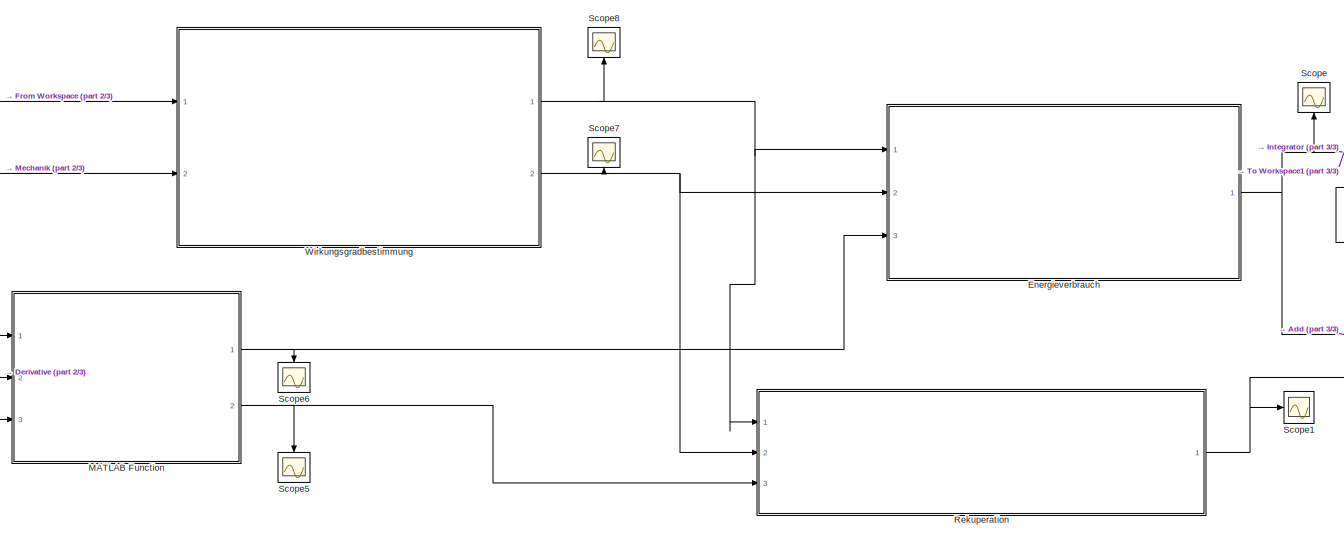
[diagram: root canvas - part 1/3, central region]
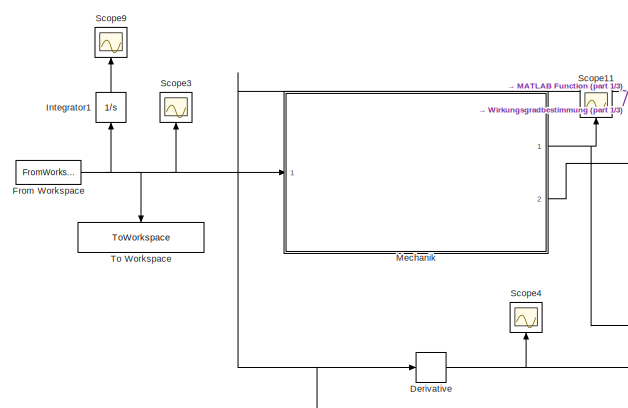
[diagram: root canvas - part 2/3, top left region]
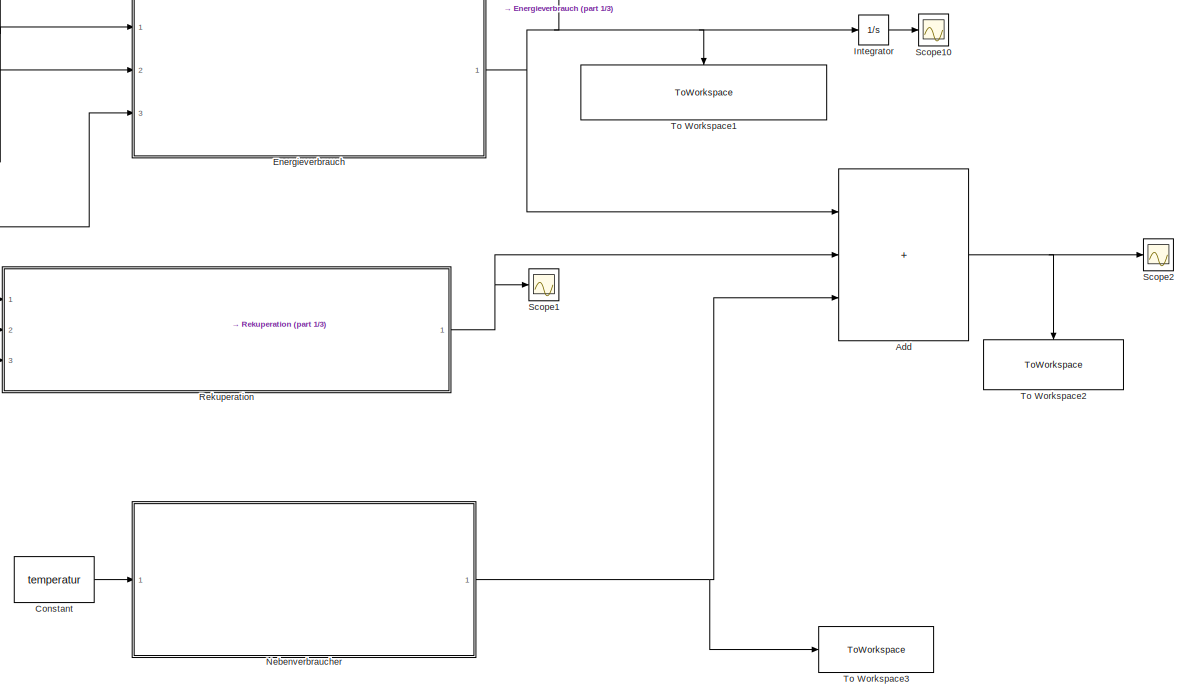
[diagram: root canvas - part 3/3, right side, full height]
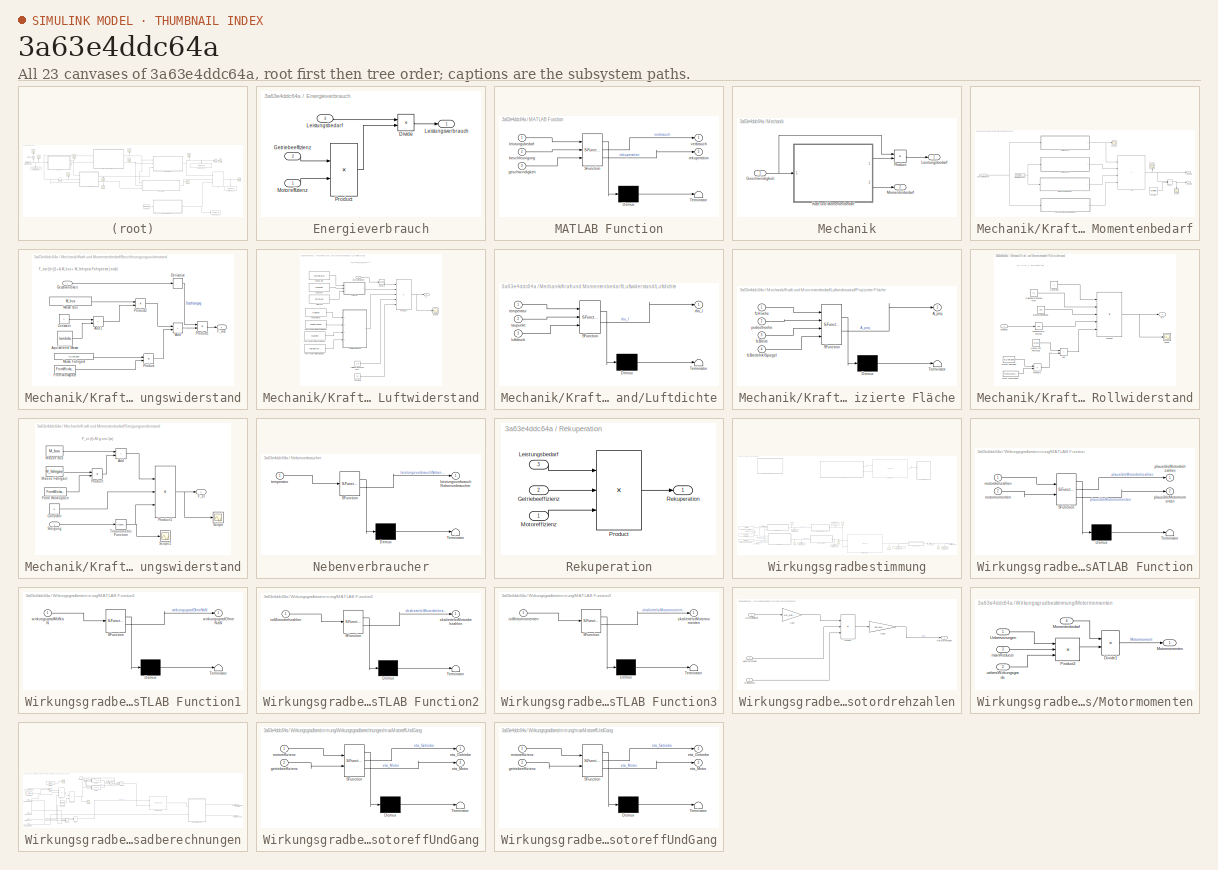
[diagram: thumbnail index - all 23 canvases of the model, root first then tree order]
MODEL slx_3a63e4ddc64a
KIND model
CONFIG AbsTol = auto
CONFIG EnableMultiTasking = off
CONFIG FixedStep = 1
CONFIG MaxStep = auto
CONFIG MinStep = auto
CONFIG RelTol = 1e-3
CONFIG SampleTimeConstraint = Unconstrained
CONFIG SolverName = FixedStepAuto
CONFIG StartTime = 0.0
CONFIG StopTime = 2750
BLOCK [Sum] Add
  IconShape = rectangular
  Inputs = +++
  Ports = [3, 1]
BLOCK [Constant] Constant
  Value = temperatur
BLOCK [Derivative] Derivative
BLOCK [SubSystem] Energieverbrauch
  Ports = [3, 1]
  RequestExecContextInheritance = off
BLOCK [Product] Energieverbrauch/Divide
  Inputs = */
  Ports = [2, 1]
BLOCK [Inport] Energieverbrauch/Getriebeeffizienz
  Port = 2
BLOCK [Inport] Energieverbrauch/Leistungsbedarf
  Port = 3
BLOCK [Outport] Energieverbrauch/Leistungsverbrauch
BLOCK [Inport] Energieverbrauch/Motoreffizienz
BLOCK [Product] Energieverbrauch/Product
  Ports = [2, 1]
BLOCK [FromWorkspace] From Workspace
  VariableName = Geschwindigkeit
BLOCK [Integrator] Integrator
  Ports = [1, 1]
BLOCK [Integrator] Integrator1
  NameLocation = right
  Ports = [1, 1]
BLOCK [SubSystem] MATLAB Function
  ErrorFcn = Stateflow.Translate.translate
  PermitHierarchicalResolution = ExplicitOnly
  Ports = [3, 2]
  RequestExecContextInheritance = off
  SFBlockType = MATLAB Function
  TreatAsAtomicUnit = on
BLOCK [Demux] MATLAB Function/ Demux 
  Outputs = 1
  Ports = [1, 1]
BLOCK [S-Function] MATLAB Function/ SFunction 
  EnableBusSupport = on
  FunctionName = sf_sfun
  PortCounts = [3 3]
  Ports = [3, 3]
  SFcnIsStateOwnerBlock = off
  SFunctionDeploymentMode = off
  Tag = Stateflow S-Function 6
BLOCK [Terminator] MATLAB Function/ Terminator 
BLOCK [Inport] MATLAB Function/beschleunigung
  Port = 2
BLOCK [Inport] MATLAB Function/geschwindigkeit
  Port = 3
BLOCK [Inport] MATLAB Function/leistungsbedarf
BLOCK [Outport] MATLAB Function/rekuperation
  Port = 2
BLOCK [Outport] MATLAB Function/verbrauch
BLOCK [SubSystem] Mechanik
  Ports = [1, 2]
  RequestExecContextInheritance = off
BLOCK [Inport] Mechanik/Geschwindigkeit
BLOCK [SubSystem] Mechanik/Kraft und Momentenbedarf
  Ports = [1, 2]
  RequestExecContextInheritance = off
BLOCK [Sum] Mechanik/Kraft und Momentenbedarf/Add
  IconShape = rectangular
  Inputs = ++++
  Ports = [4, 1]
BLOCK [SubSystem] Mechanik/Kraft und Momentenbedarf/Beschleunigungswiderstand
  Ports = [1, 1]
  RequestExecContextInheritance = off
BLOCK [Sum] Mechanik/Kraft und Momentenbedarf/Beschleunigungswiderstand/Add
  IconShape = rectangular
  Ports = [2, 1]
BLOCK [Sum] Mechanik/Kraft und Momentenbedarf/Beschleunigungswiderstand/Add1
  IconShape = rectangular
  Ports = [2, 1]
BLOCK [Constant] Mechanik/Kraft und Momentenbedarf/Beschleunigungswiderstand/Constant
BLOCK [Derivative] Mechanik/Kraft und Momentenbedarf/Beschleunigungswiderstand/Derivative
BLOCK [Outport] Mechanik/Kraft und Momentenbedarf/Beschleunigungswiderstand/F_acc
BLOCK [FromWorkspace] Mechanik/Kraft und Momentenbedarf/Beschleunigungswiderstand/From Workspace
  VariableName = Fahrgaeste
BLOCK [Inport] Mechanik/Kraft und Momentenbedarf/Beschleunigungswiderstand/Geschwindikeit
BLOCK [Constant] Mechanik/Kraft und Momentenbedarf/Beschleunigungswiderstand/Masse Bus
  Value = M_bus
BLOCK [Constant] Mechanik/Kraft und Momentenbedarf/Beschleunigungswiderstand/Masse Fahrgast
  Value = M_fahrgast
BLOCK [Product] Mechanik/Kraft und Momentenbedarf/Beschleunigungswiderstand/Product
  Ports = [2, 1]
BLOCK [Product] Mechanik/Kraft und Momentenbedarf/Beschleunigungswiderstand/Product1
  Ports = [2, 1]
BLOCK [Product] Mechanik/Kraft und Momentenbedarf/Beschleunigungswiderstand/Product2
  Ports = [2, 1]
BLOCK [Constant] Mechanik/Kraft und Momentenbedarf/Beschleunigungswiderstand/Äquivalente Masse
  Value = lambda
BLOCK [Constant] Mechanik/Kraft und Momentenbedarf/Constant
  Value = R_Reifen
BLOCK [Outport] Mechanik/Kraft und Momentenbedarf/F_Bedarf
BLOCK [FromWorkspace] Mechanik/Kraft und Momentenbedarf/From Workspace
  VariableName = timeseries(Steigung)
BLOCK [Inport] Mechanik/Kraft und Momentenbedarf/Geschwindigkeit
BLOCK [SubSystem] Mechanik/Kraft und Momentenbedarf/Luftwiderstand
  Ports = [1, 1]
  RequestExecContextInheritance = off
BLOCK [Constant] Mechanik/Kraft und Momentenbedarf/Luftwiderstand/Constant3
  Value = 0.5
BLOCK [Outport] Mechanik/Kraft und Momentenbedarf/Luftwiderstand/F_l
BLOCK [Constant] Mechanik/Kraft und Momentenbedarf/Luftwiderstand/Fahrzeugbreite inkl. Spiegel
  Value = fzBreiteInklSpiegel
BLOCK [Constant] Mechanik/Kraft und Momentenbedarf/Luftwiderstand/Fahrzeugbreite ohne Spiegel
  Value = fzBreite
BLOCK [Constant] Mechanik/Kraft und Momentenbedarf/Luftwiderstand/Fahrzeugbreite ohne Spiegel1
  Value = podesthoehe
BLOCK [Inport] Mechanik/Kraft und Momentenbedarf/Luftwiderstand/Geschwindigkeit
BLOCK [SubSystem] Mechanik/Kraft und Momentenbedarf/Luftwiderstand/Luftdichte
  ErrorFcn = Stateflow.Translate.translate
  PermitHierarchicalResolution = ExplicitOnly
  Ports = [3, 1]
  RequestExecContextInheritance = off
  SFBlockType = MATLAB Function
  TreatAsAtomicUnit = on
BLOCK [Demux] Mechanik/Kraft und Momentenbedarf/Luftwiderstand/Luftdichte/ Demux 
  Outputs = 1
  Ports = [1, 1]
BLOCK [S-Function] Mechanik/Kraft und Momentenbedarf/Luftwiderstand/Luftdichte/ SFunction 
  EnableBusSupport = on
  FunctionName = sf_sfun
  PortCounts = [3 2]
  Ports = [3, 2]
  SFcnIsStateOwnerBlock = off
  SFunctionDeploymentMode = off
  Tag = Stateflow S-Function 2
BLOCK [Terminator] Mechanik/Kraft und Momentenbedarf/Luftwiderstand/Luftdichte/ Terminator 
BLOCK [Inport] Mechanik/Kraft und Momentenbedarf/Luftwiderstand/Luftdichte/luftdruck
  Port = 3
BLOCK [Outport] Mechanik/Kraft und Momentenbedarf/Luftwiderstand/Luftdichte/rho_l
BLOCK [Inport] Mechanik/Kraft und Momentenbedarf/Luftwiderstand/Luftdichte/taupunkt
  Port = 2
BLOCK [Inport] Mechanik/Kraft und Momentenbedarf/Luftwiderstand/Luftdichte/temperatur
BLOCK [Constant] Mechanik/Kraft und Momentenbedarf/Luftwiderstand/Luftdruck
  Value = luftdruck
BLOCK [Constant] Mechanik/Kraft und Momentenbedarf/Luftwiderstand/Luftwiderstandsbeiwert
  Value = c_d
BLOCK [Constant] Mechanik/Kraft und Momentenbedarf/Luftwiderstand/Podesthöhe
  Value = fzHoehe
BLOCK [Product] Mechanik/Kraft und Momentenbedarf/Luftwiderstand/Product
  Inputs = 5
  Ports = [5, 1]
BLOCK [SubSystem] Mechanik/Kraft und Momentenbedarf/Luftwiderstand/Projizierte Fläche
  ErrorFcn = Stateflow.Translate.translate
  PermitHierarchicalResolution = ExplicitOnly
  Ports = [4, 1]
  RequestExecContextInheritance = off
  SFBlockType = MATLAB Function
  TreatAsAtomicUnit = on
BLOCK [Demux] Mechanik/Kraft und Momentenbedarf/Luftwiderstand/Projizierte Fläche/ Demux 
  Outputs = 1
  Ports = [1, 1]
BLOCK [S-Function] Mechanik/Kraft und Momentenbedarf/Luftwiderstand/Projizierte Fläche/ SFunction 
  EnableBusSupport = on
  FunctionName = sf_sfun
  PortCounts = [4 2]
  Ports = [4, 2]
  SFcnIsStateOwnerBlock = off
  SFunctionDeploymentMode = off
  Tag = Stateflow S-Function 1
BLOCK [Terminator] Mechanik/Kraft und Momentenbedarf/Luftwiderstand/Projizierte Fläche/ Terminator 
BLOCK [Outport] Mechanik/Kraft und Momentenbedarf/Luftwiderstand/Projizierte Fläche/A_proj
BLOCK [Inport] Mechanik/Kraft und Momentenbedarf/Luftwiderstand/Projizierte Fläche/fzBreite
  Port = 3
BLOCK [Inport] Mechanik/Kraft und Momentenbedarf/Luftwiderstand/Projizierte Fläche/fzBreiteInklSpiegel
  Port = 4
BLOCK [Inport] Mechanik/Kraft und Momentenbedarf/Luftwiderstand/Projizierte Fläche/fzHoehe
BLOCK [Inport] Mechanik/Kraft und Momentenbedarf/Luftwiderstand/Projizierte Fläche/podesthoehe
  Port = 2
BLOCK [Scope] Mechanik/Kraft und Momentenbedarf/Luftwiderstand/Scope
  Floating = off
  NumInputPorts = 1
  Ports = [1]
  ScopeSpecificationString = Simulink.scopes.TimeScopeBlockCfg('CurrentConfiguration', extmgr.ConfigurationSet(extmgr.Configuration('Core','General UI',true),extmgr.Configuration('Core','Source UI',true),extmgr.Configuration('Sources','WiredSimulink',true,'DataLoggingVariableName','ScopeData1'),extmgr.Configuration('Visuals','Time Domain',true,'SerializedDisplays',{struct('MinYLimReal','-74.87994','MaxYLimReal','673.91945','Y...<+1411ch>
BLOCK [Math] Mechanik/Kraft und Momentenbedarf/Luftwiderstand/Square
  Operator = square
  Ports = [1, 1]
BLOCK [Constant] Mechanik/Kraft und Momentenbedarf/Luftwiderstand/Taupunkt
  Value = taupunkt
BLOCK [Constant] Mechanik/Kraft und Momentenbedarf/Luftwiderstand/Temperatur
  Value = temperatur
BLOCK [Product] Mechanik/Kraft und Momentenbedarf/Product
  Ports = [2, 1]
BLOCK [SubSystem] Mechanik/Kraft und Momentenbedarf/Rollwiderstand
  Ports = [1, 1]
  RequestExecContextInheritance = off
BLOCK [Sum] Mechanik/Kraft und Momentenbedarf/Rollwiderstand/Add
  IconShape = rectangular
  Ports = [2, 1]
BLOCK [Constant] Mechanik/Kraft und Momentenbedarf/Rollwiderstand/Constant
BLOCK [Constant] Mechanik/Kraft und Momentenbedarf/Rollwiderstand/Erdbeschleunigung
  Value = 9.81
BLOCK [Outport] Mechanik/Kraft und Momentenbedarf/Rollwiderstand/F_r
BLOCK [FromWorkspace] Mechanik/Kraft und Momentenbedarf/Rollwiderstand/From Workspace
  VariableName = Fahrgaeste
BLOCK [Constant] Mechanik/Kraft und Momentenbedarf/Rollwiderstand/Masse Fahrgast
  Value = M_fahrgast
BLOCK [Constant] Mechanik/Kraft und Momentenbedarf/Rollwiderstand/Masse von Fahrzeug
  Value = M_bus
BLOCK [Product] Mechanik/Kraft und Momentenbedarf/Rollwiderstand/Product
  Inputs = 5
  Ports = [5, 1]
BLOCK [Product] Mechanik/Kraft und Momentenbedarf/Rollwiderstand/Product1
  Ports = [2, 1]
BLOCK [Constant] Mechanik/Kraft und Momentenbedarf/Rollwiderstand/Rollwiderstandsbeiwert
  Value = c_r
BLOCK [Scope] Mechanik/Kraft und Momentenbedarf/Rollwiderstand/Scope
  Floating = off
  NumInputPorts = 1
  Ports = [1]
  ScopeSpecificationString = Simulink.scopes.TimeScopeBlockCfg('CurrentConfiguration', extmgr.ConfigurationSet(extmgr.Configuration('Core','General UI',true),extmgr.Configuration('Core','Source UI',true),extmgr.Configuration('Sources','WiredSimulink',true,'DataLoggingVariableName','ScopeData2'),extmgr.Configuration('Visuals','Time Domain',true,'SerializedDisplays',{struct('MinYLimReal','1216.62285','MaxYLimReal','1302.52967',...<+1420ch>
BLOCK [Inport] Mechanik/Kraft und Momentenbedarf/Rollwiderstand/Steigung
BLOCK [Trigonometry] Mechanik/Kraft und Momentenbedarf/Rollwiderstand/Trigonometric Function
  Operator = cos
  Ports = [1, 1]
BLOCK [Scope] Mechanik/Kraft und Momentenbedarf/Scope
  Floating = off
  NameLocation = left
  NumInputPorts = 1
  Ports = [1]
  ScopeSpecificationString = Simulink.scopes.TimeScopeBlockCfg('CurrentConfiguration', extmgr.ConfigurationSet(extmgr.Configuration('Core','General UI',true),extmgr.Configuration('Core','Source UI',true),extmgr.Configuration('Sources','WiredSimulink',true,'DataLoggingVariableName','ScopeData1'),extmgr.Configuration('Visuals','Time Domain',true,'SerializedDisplays',{struct('MinYLimReal','-9200.63235','MaxYLimReal','12159.77074...<+1421ch>
BLOCK [Scope] Mechanik/Kraft und Momentenbedarf/Scope1
  Floating = off
  NameLocation = right
  NumInputPorts = 1
  Ports = [1]
  ScopeSpecificationString = Simulink.scopes.TimeScopeBlockCfg('CurrentConfiguration', extmgr.ConfigurationSet(extmgr.Configuration('Core','General UI',true),extmgr.Configuration('Core','Source UI',true),extmgr.Configuration('Sources','WiredSimulink',true,'DataLoggingVariableName','ScopeData5'),extmgr.Configuration('Visuals','Time Domain',true,'SerializedDisplays',{struct('MinYLimReal','-37262.11351','MaxYLimReal','38918.5372...<+1428ch>
BLOCK [Scope] Mechanik/Kraft und Momentenbedarf/Scope3
  Floating = off
  NumInputPorts = 1
  Ports = [1]
  ScopeSpecificationString = Simulink.scopes.TimeScopeBlockCfg('CurrentConfiguration', extmgr.ConfigurationSet(extmgr.Configuration('Core','General UI',true),extmgr.Configuration('Core','Source UI',true),extmgr.Configuration('Sources','WiredSimulink',true,'DataLoggingVariableName','ScopeData3'),extmgr.Configuration('Visuals','Time Domain',true,'SerializedDisplays',{struct('MinYLimReal','-84.10085','MaxYLimReal','756.90767','Y...<+1383ch>
BLOCK [SubSystem] Mechanik/Kraft und Momentenbedarf/Steigungswiderstand
  Ports = [1, 1]
  RequestExecContextInheritance = off
BLOCK [Sum] Mechanik/Kraft und Momentenbedarf/Steigungswiderstand/Add
  IconShape = rectangular
  Ports = [2, 1]
BLOCK [Constant] Mechanik/Kraft und Momentenbedarf/Steigungswiderstand/Constant
  Value = g
BLOCK [Outport] Mechanik/Kraft und Momentenbedarf/Steigungswiderstand/F_st
BLOCK [FromWorkspace] Mechanik/Kraft und Momentenbedarf/Steigungswiderstand/From Workspace
  VariableName = Fahrgaeste
BLOCK [Constant] Mechanik/Kraft und Momentenbedarf/Steigungswiderstand/Masse Bus
  Value = M_bus
BLOCK [Constant] Mechanik/Kraft und Momentenbedarf/Steigungswiderstand/Masse Fahrgast
  Value = M_fahrgast
BLOCK [Product] Mechanik/Kraft und Momentenbedarf/Steigungswiderstand/Product
  Ports = [2, 1]
BLOCK [Product] Mechanik/Kraft und Momentenbedarf/Steigungswiderstand/Product1
  Inputs = 3
  Ports = [3, 1]
BLOCK [Scope] Mechanik/Kraft und Momentenbedarf/Steigungswiderstand/Scope
  Floating = off
  NumInputPorts = 1
  Ports = [1]
  ScopeSpecificationString = Simulink.scopes.TimeScopeBlockCfg('CurrentConfiguration', extmgr.ConfigurationSet(extmgr.Configuration('Core','General UI',true),extmgr.Configuration('Core','Source UI',true),extmgr.Configuration('Sources','WiredSimulink',true,'DataLoggingVariableName','ScopeData3'),extmgr.Configuration('Visuals','Time Domain',true,'SerializedDisplays',{struct('MinYLimReal','-11979.01378','MaxYLimReal','10690.7534...<+1430ch>
BLOCK [Scope] Mechanik/Kraft und Momentenbedarf/Steigungswiderstand/Scope1
  Floating = off
  NumInputPorts = 1
  Ports = [1]
  ScopeSpecificationString = Simulink.scopes.TimeScopeBlockCfg('CurrentConfiguration', extmgr.ConfigurationSet(extmgr.Configuration('Core','General UI',true),extmgr.Configuration('Core','Source UI',true),extmgr.Configuration('Sources','WiredSimulink',true,'DataLoggingVariableName','ScopeData4'),extmgr.Configuration('Visuals','Time Domain',true,'SerializedDisplays',{struct('MinYLimReal','-0.09417','MaxYLimReal','0.08477','YLab...<+1416ch>
BLOCK [Inport] Mechanik/Kraft und Momentenbedarf/Steigungswiderstand/Steigung
BLOCK [Trigonometry] Mechanik/Kraft und Momentenbedarf/Steigungswiderstand/Trigonometric Function
  Ports = [1, 1]
BLOCK [Outport] Mechanik/Kraft und Momentenbedarf/T_bedarf
  Port = 2
BLOCK [Outport] Mechanik/Leistungsbedarf
BLOCK [Outport] Mechanik/Momentenbedarf
  Port = 2
BLOCK [Product] Mechanik/Product
  Ports = [2, 1]
BLOCK [SubSystem] Nebenverbraucher
  ErrorFcn = Stateflow.Translate.translate
  PermitHierarchicalResolution = ExplicitOnly
  Ports = [1, 1]
  RequestExecContextInheritance = off
  SFBlockType = MATLAB Function
  TreatAsAtomicUnit = on
BLOCK [Demux] Nebenverbraucher/ Demux 
  Outputs = 1
  Ports = [1, 1]
BLOCK [S-Function] Nebenverbraucher/ SFunction 
  EnableBusSupport = on
  FunctionName = sf_sfun
  PortCounts = [1 2]
  Ports = [1, 2]
  SFcnIsStateOwnerBlock = off
  SFunctionDeploymentMode = off
  Tag = Stateflow S-Function 10
BLOCK [Terminator] Nebenverbraucher/ Terminator 
BLOCK [Outport] Nebenverbraucher/leistungsverbrauchNebenverbraucher
BLOCK [Inport] Nebenverbraucher/temperatur
BLOCK [SubSystem] Rekuperation
  Ports = [3, 1]
  RequestExecContextInheritance = off
BLOCK [Inport] Rekuperation/Getriebeeffizienz
  Port = 2
BLOCK [Inport] Rekuperation/Leistungsbedarf
  Port = 3
BLOCK [Inport] Rekuperation/Motoreffizienz
BLOCK [Product] Rekuperation/Product
  Inputs = 3
  Ports = [3, 1]
BLOCK [Outport] Rekuperation/Rekuperation
BLOCK [Scope] Scope
  Floating = off
  NameLocation = right
  NumInputPorts = 1
  Ports = [1]
  ScopeSpecificationString = Simulink.scopes.TimeScopeBlockCfg('CurrentConfiguration', extmgr.ConfigurationSet(extmgr.Configuration('Core','General UI',true),extmgr.Configuration('Core','Source UI',true),extmgr.Configuration('Sources','WiredSimulink',true),extmgr.Configuration('Visuals','Time Domain',true,'SerializedDisplays',{struct('MinYLimReal','-31501.77351','MaxYLimReal','283515.96158','YLabelReal','','MinYLimMag','   0....<+1404ch>
BLOCK [Scope] Scope1
  Floating = off
  NumInputPorts = 1
  Ports = [1]
  ScopeSpecificationString = Simulink.scopes.TimeScopeBlockCfg('CurrentConfiguration', extmgr.ConfigurationSet(extmgr.Configuration('Core','General UI',true),extmgr.Configuration('Core','Source UI',true),extmgr.Configuration('Sources','WiredSimulink',true,'DataLoggingVariableName','ScopeData1'),extmgr.Configuration('Visuals','Time Domain',true,'SerializedDisplays',{struct('MinYLimReal','-163622.03246','MaxYLimReal','18180.225...<+1407ch>
BLOCK [Scope] Scope10
  Floating = off
  NumInputPorts = 1
  Ports = [1]
  ScopeSpecificationString = Simulink.scopes.TimeScopeBlockCfg('CurrentConfiguration', extmgr.ConfigurationSet(extmgr.Configuration('Core','General UI',true),extmgr.Configuration('Core','Source UI',true),extmgr.Configuration('Sources','WiredSimulink',true,'DataLoggingVariableName','ScopeData1'),extmgr.Configuration('Visuals','Time Domain',true,'SerializedDisplays',{struct('MinYLimReal','-7806803.23095','MaxYLimReal','70261229...<+1419ch>
BLOCK [Scope] Scope11
  Floating = off
  NameLocation = right
  NumInputPorts = 1
  Ports = [1]
  ScopeSpecificationString = Simulink.scopes.TimeScopeBlockCfg('CurrentConfiguration', extmgr.ConfigurationSet(extmgr.Configuration('Core','General UI',true),extmgr.Configuration('Core','Source UI',true),extmgr.Configuration('Sources','WiredSimulink',true,'DataLoggingVariableName','ScopeData1'),extmgr.Configuration('Visuals','Time Domain',true,'SerializedDisplays',{struct('MinYLimReal','-832276.27709','MaxYLimReal','920280.39...<+1407ch>
BLOCK [Scope] Scope2
  Floating = off
  NumInputPorts = 1
  Ports = [1]
  ScopeSpecificationString = Simulink.scopes.TimeScopeBlockCfg('CurrentConfiguration', extmgr.ConfigurationSet(extmgr.Configuration('Core','General UI',true),extmgr.Configuration('Core','Source UI',true),extmgr.Configuration('Sources','WiredSimulink',true,'DataLoggingVariableName','ScopeData2'),extmgr.Configuration('Visuals','Time Domain',true,'SerializedDisplays',{struct('MinYLimReal','-534403.69408','MaxYLimReal','1532673.5...<+1439ch>
BLOCK [Scope] Scope3
  Floating = off
  NameLocation = right
  NumInputPorts = 1
  Ports = [1]
  ScopeSpecificationString = Simulink.scopes.TimeScopeBlockCfg('CurrentConfiguration', extmgr.ConfigurationSet(extmgr.Configuration('Core','General UI',true),extmgr.Configuration('Core','Source UI',true),extmgr.Configuration('Sources','WiredSimulink',true,'DataLoggingVariableName','ScopeData3'),extmgr.Configuration('Visuals','Time Domain',true,'SerializedDisplays',{struct('MinYLimReal','-2.09225','MaxYLimReal','18.83025','YLa...<+1415ch>
BLOCK [Scope] Scope4
  Floating = off
  NameLocation = right
  NumInputPorts = 1
  Ports = [1]
  ScopeSpecificationString = Simulink.scopes.TimeScopeBlockCfg('CurrentConfiguration', extmgr.ConfigurationSet(extmgr.Configuration('Core','General UI',true),extmgr.Configuration('Core','Source UI',true),extmgr.Configuration('Sources','WiredSimulink',true,'DataLoggingVariableName','ScopeData3'),extmgr.Configuration('Visuals','Time Domain',true,'SerializedDisplays',{struct('MinYLimReal','-3.74056','MaxYLimReal','3.48167','YLab...<+1402ch>
BLOCK [Scope] Scope5
  Floating = off
  NameLocation = left
  NumInputPorts = 1
  Ports = [1]
  ScopeSpecificationString = Simulink.scopes.TimeScopeBlockCfg('CurrentConfiguration', extmgr.ConfigurationSet(extmgr.Configuration('Core','General UI',true),extmgr.Configuration('Core','Source UI',true),extmgr.Configuration('Sources','WiredSimulink',true,'DataLoggingVariableName','ScopeData4'),extmgr.Configuration('Visuals','Time Domain',true,'SerializedDisplays',{struct('MinYLimReal','-431858.3157','MaxYLimReal','47984.2573...<+1450ch>
BLOCK [Scope] Scope6
  Floating = off
  NameLocation = left
  NumInputPorts = 1
  Ports = [1]
  ScopeSpecificationString = Simulink.scopes.TimeScopeBlockCfg('CurrentConfiguration', extmgr.ConfigurationSet(extmgr.Configuration('Core','General UI',true),extmgr.Configuration('Core','Source UI',true),extmgr.Configuration('Sources','WiredSimulink',true,'DataLoggingVariableName','ScopeData5'),extmgr.Configuration('Visuals','Time Domain',true,'SerializedDisplays',{struct('MinYLimReal','-93128.09118','MaxYLimReal','838152.820...<+1418ch>
BLOCK [Scope] Scope7
  Floating = off
  NameLocation = right
  NumInputPorts = 1
  Ports = [1]
  ScopeSpecificationString = Simulink.scopes.TimeScopeBlockCfg('CurrentConfiguration', extmgr.ConfigurationSet(extmgr.Configuration('Core','General UI',true),extmgr.Configuration('Core','Source UI',true),extmgr.Configuration('Sources','WiredSimulink',true,'DataLoggingVariableName','ScopeData6'),extmgr.Configuration('Visuals','Time Domain',true,'SerializedDisplays',{struct('MinYLimReal','0.84','MaxYLimReal','1.04','YLabelReal'...<+1440ch>
BLOCK [Scope] Scope8
  Floating = off
  NameLocation = right
  NumInputPorts = 1
  Ports = [1]
  ScopeSpecificationString = Simulink.scopes.TimeScopeBlockCfg('CurrentConfiguration', extmgr.ConfigurationSet(extmgr.Configuration('Core','General UI',true),extmgr.Configuration('Core','Source UI',true),extmgr.Configuration('Sources','WiredSimulink',true,'DataLoggingVariableName','ScopeData7'),extmgr.Configuration('Visuals','Time Domain',true,'SerializedDisplays',{struct('MinYLimReal','0.726','MaxYLimReal','0.966','YLabelRea...<+1381ch>
BLOCK [Scope] Scope9
  Floating = off
  NameLocation = right
  NumInputPorts = 1
  Ports = [1]
  ScopeSpecificationString = Simulink.scopes.TimeScopeBlockCfg('CurrentConfiguration', extmgr.ConfigurationSet(extmgr.Configuration('Core','General UI',true),extmgr.Configuration('Core','Source UI',true),extmgr.Configuration('Sources','WiredSimulink',true,'DataLoggingVariableName','ScopeData1'),extmgr.Configuration('Visuals','Time Domain',true,'SerializedDisplays',{struct('MinYLimReal','-1093.68283','MaxYLimReal','9843.1455',...<+1388ch>
BLOCK [ToWorkspace] To Workspace
  FixptAsFi = on
  MaxDataPoints = inf
  NameLocation = left
  Ports = [1]
  SampleTime = -1
  SaveFormat = Timeseries
  VariableName = simulinkGeschwindigkeit
BLOCK [ToWorkspace] To Workspace1
  FixptAsFi = on
  MaxDataPoints = inf
  NameLocation = left
  Ports = [1]
  SampleTime = -1
  SaveFormat = Timeseries
  VariableName = LeistungsverbrauchOhneRekuperation
BLOCK [ToWorkspace] To Workspace2
  FixptAsFi = on
  MaxDataPoints = inf
  NameLocation = left
  Ports = [1]
  SampleTime = -1
  SaveFormat = Timeseries
  VariableName = LeistungsverbrauchGesamt
BLOCK [ToWorkspace] To Workspace3
  FixptAsFi = on
  MaxDataPoints = inf
  Ports = [1]
  SampleTime = -1
  SaveFormat = Timeseries
  VariableName = Nebenverbraucher
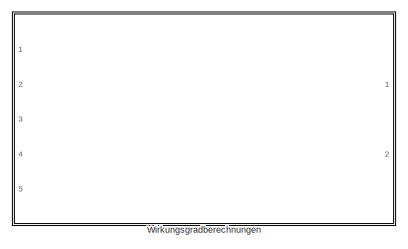
[diagram: Wirkungsgradbestimmung - part 1/6, top left region]
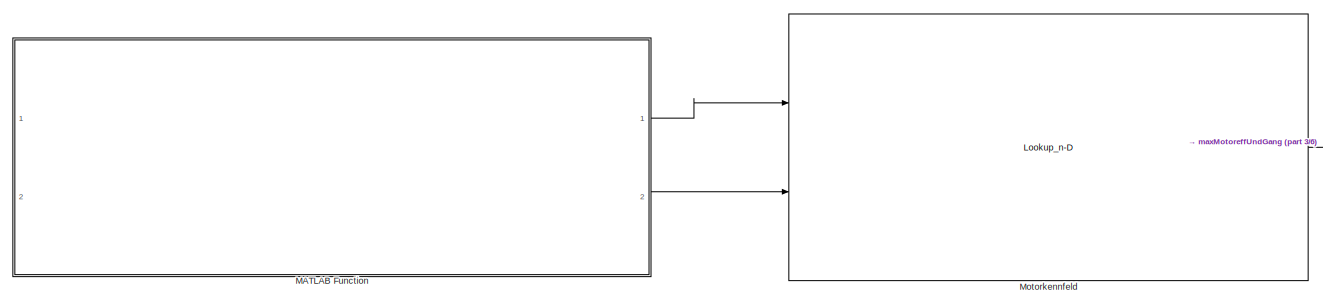
[diagram: Wirkungsgradbestimmung - part 2/6, top center region]
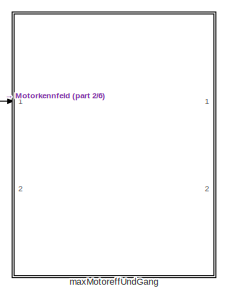
[diagram: Wirkungsgradbestimmung - part 3/6, top right region]
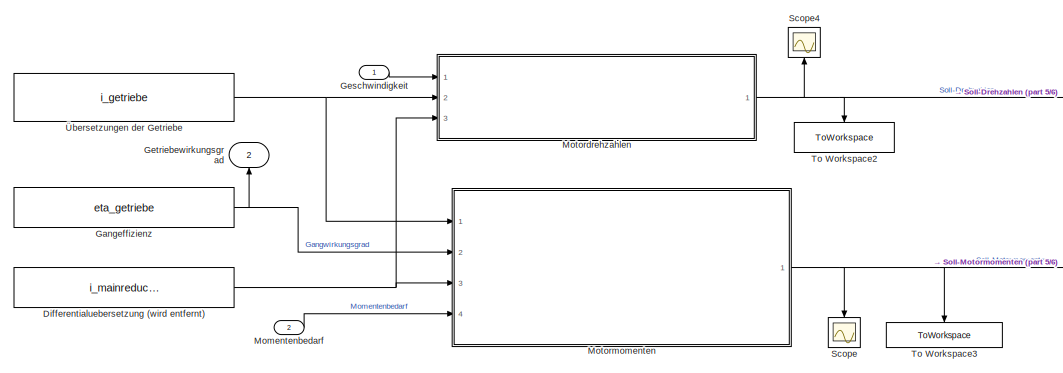
[diagram: Wirkungsgradbestimmung - part 4/6, bottom left region]
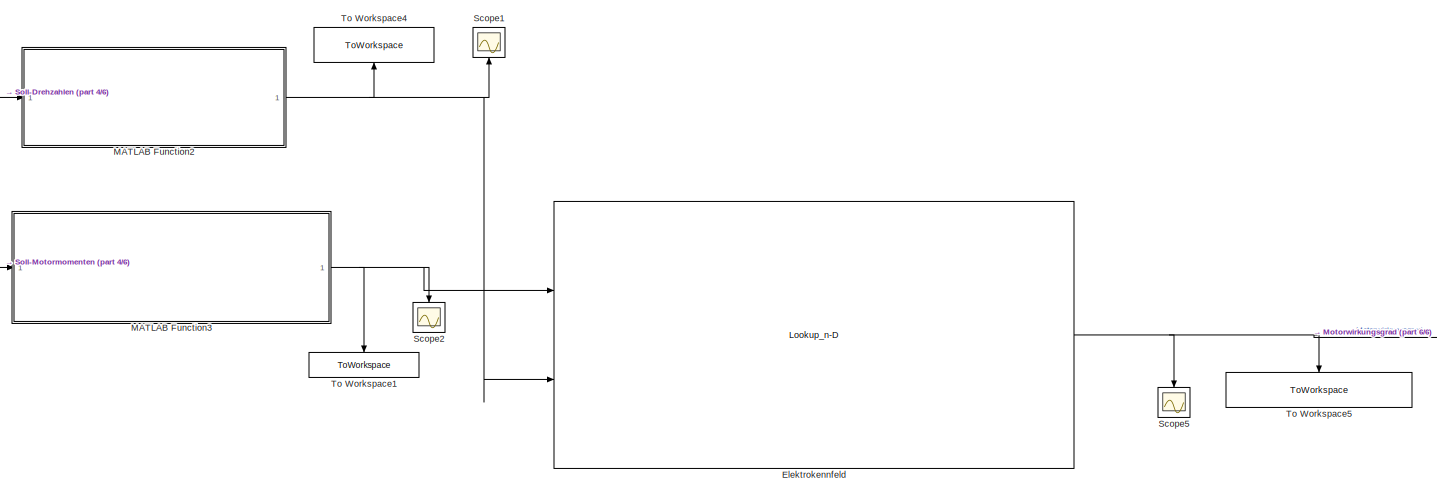
[diagram: Wirkungsgradbestimmung - part 5/6, bottom center region]
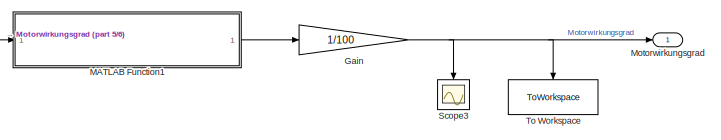
[diagram: Wirkungsgradbestimmung - part 6/6, bottom right region]
BLOCK [SubSystem] Wirkungsgradbestimmung
  Ports = [2, 2]
  RequestExecContextInheritance = off
BLOCK [Constant] Wirkungsgradbestimmung/Differentialuebersetzung (wird entfernt)
  Value = i_mainreducer
BLOCK [Lookup_n-D] Wirkungsgradbestimmung/Elektrokennfeld
  BreakpointsForDimension1 = [1:161]
  BreakpointsForDimension2 = [1:251]
  InputPortMap = u0,u1
  InternalRulePriority = Speed
  InterpMethod = Nearest
  Ports = [2, 1]
  RndMeth = Simplest
  Table = kennfeld
  UseLastTableValue = on
BLOCK [Gain] Wirkungsgradbestimmung/Gain
  Gain = 1/100
BLOCK [Constant] Wirkungsgradbestimmung/Gangeffizienz
  Value = eta_getriebe
BLOCK [Inport] Wirkungsgradbestimmung/Geschwindigkeit
BLOCK [Outport] Wirkungsgradbestimmung/Getriebewirkungsgrad
  NameLocation = left
  Port = 2
BLOCK [SubSystem] Wirkungsgradbestimmung/MATLAB Function
  Commented = on
  ErrorFcn = Stateflow.Translate.translate
  PermitHierarchicalResolution = ExplicitOnly
  Ports = [2, 2]
  RequestExecContextInheritance = off
  SFBlockType = MATLAB Function
  TreatAsAtomicUnit = on
BLOCK [Demux] Wirkungsgradbestimmung/MATLAB Function/ Demux 
  Outputs = 1
  Ports = [1, 1]
BLOCK [S-Function] Wirkungsgradbestimmung/MATLAB Function/ SFunction 
  EnableBusSupport = on
  FunctionName = sf_sfun
  PortCounts = [2 3]
  Ports = [2, 3]
  SFcnIsStateOwnerBlock = off
  SFunctionDeploymentMode = off
  Tag = Stateflow S-Function 3
BLOCK [Terminator] Wirkungsgradbestimmung/MATLAB Function/ Terminator 
BLOCK [Inport] Wirkungsgradbestimmung/MATLAB Function/motordrehzahlen
BLOCK [Inport] Wirkungsgradbestimmung/MATLAB Function/motormomenten
  Port = 2
BLOCK [Outport] Wirkungsgradbestimmung/MATLAB Function/plausibleMotordrehzahlen
BLOCK [Outport] Wirkungsgradbestimmung/MATLAB Function/plausibleMotormomenten
  Port = 2
BLOCK [SubSystem] Wirkungsgradbestimmung/MATLAB Function1
  ErrorFcn = Stateflow.Translate.translate
  PermitHierarchicalResolution = ExplicitOnly
  Ports = [1, 1]
  RequestExecContextInheritance = off
  SFBlockType = MATLAB Function
  TreatAsAtomicUnit = on
BLOCK [Demux] Wirkungsgradbestimmung/MATLAB Function1/ Demux 
  Outputs = 1
  Ports = [1, 1]
BLOCK [S-Function] Wirkungsgradbestimmung/MATLAB Function1/ SFunction 
  EnableBusSupport = on
  FunctionName = sf_sfun
  PortCounts = [1 2]
  Ports = [1, 2]
  SFcnIsStateOwnerBlock = off
  SFunctionDeploymentMode = off
  Tag = Stateflow S-Function 7
BLOCK [Terminator] Wirkungsgradbestimmung/MATLAB Function1/ Terminator 
BLOCK [Inport] Wirkungsgradbestimmung/MATLAB Function1/wirkungsgradMitNaN
BLOCK [Outport] Wirkungsgradbestimmung/MATLAB Function1/wirkungsgradOhneNaN
BLOCK [SubSystem] Wirkungsgradbestimmung/MATLAB Function2
  ErrorFcn = Stateflow.Translate.translate
  PermitHierarchicalResolution = ExplicitOnly
  Ports = [1, 1]
  RequestExecContextInheritance = off
  SFBlockType = MATLAB Function
  TreatAsAtomicUnit = on
BLOCK [Demux] Wirkungsgradbestimmung/MATLAB Function2/ Demux 
  Outputs = 1
  Ports = [1, 1]
BLOCK [S-Function] Wirkungsgradbestimmung/MATLAB Function2/ SFunction 
  EnableBusSupport = on
  FunctionName = sf_sfun
  PortCounts = [1 2]
  Ports = [1, 2]
  SFcnIsStateOwnerBlock = off
  SFunctionDeploymentMode = off
  Tag = Stateflow S-Function 9
BLOCK [Terminator] Wirkungsgradbestimmung/MATLAB Function2/ Terminator 
BLOCK [Inport] Wirkungsgradbestimmung/MATLAB Function2/istMotordrehzahlen
BLOCK [Outport] Wirkungsgradbestimmung/MATLAB Function2/skalierteIstMotordrehzahlen
BLOCK [SubSystem] Wirkungsgradbestimmung/MATLAB Function3
  ErrorFcn = Stateflow.Translate.translate
  PermitHierarchicalResolution = ExplicitOnly
  Ports = [1, 1]
  RequestExecContextInheritance = off
  SFBlockType = MATLAB Function
  TreatAsAtomicUnit = on
BLOCK [Demux] Wirkungsgradbestimmung/MATLAB Function3/ Demux 
  Outputs = 1
  Ports = [1, 1]
BLOCK [S-Function] Wirkungsgradbestimmung/MATLAB Function3/ SFunction 
  EnableBusSupport = on
  FunctionName = sf_sfun
  PortCounts = [1 2]
  Ports = [1, 2]
  SFcnIsStateOwnerBlock = off
  SFunctionDeploymentMode = off
  Tag = Stateflow S-Function 8
BLOCK [Terminator] Wirkungsgradbestimmung/MATLAB Function3/ Terminator 
BLOCK [Inport] Wirkungsgradbestimmung/MATLAB Function3/istMotormomenten
BLOCK [Outport] Wirkungsgradbestimmung/MATLAB Function3/skalierteIstMotormomenten
BLOCK [Inport] Wirkungsgradbestimmung/Momentenbedarf
  Port = 2
BLOCK [SubSystem] Wirkungsgradbestimmung/Motordrehzahlen
  Ports = [3, 1]
  RequestExecContextInheritance = off
BLOCK [Gain] Wirkungsgradbestimmung/Motordrehzahlen/Gain
  Gain = 1/R_Reifen
BLOCK [Gain] Wirkungsgradbestimmung/Motordrehzahlen/Gain1
  Gain = 60/(2*pi)
BLOCK [Inport] Wirkungsgradbestimmung/Motordrehzahlen/Geschwindigkeit
BLOCK [Outport] Wirkungsgradbestimmung/Motordrehzahlen/Motordrehzahlen
BLOCK [Product] Wirkungsgradbestimmung/Motordrehzahlen/Product
  Inputs = 3
  Ports = [3, 1]
BLOCK [Inport] Wirkungsgradbestimmung/Motordrehzahlen/Uebersetzungen
  Port = 2
BLOCK [Inport] Wirkungsgradbestimmung/Motordrehzahlen/mainReducer
  Port = 3
BLOCK [Lookup_n-D] Wirkungsgradbestimmung/Motorkennfeld
  BreakpointsForDimension1 = [1:86]
  BreakpointsForDimension2 = [1:251]
  Commented = on
  InputPortMap = u0,u1
  InternalRulePriority = Speed
  Ports = [2, 1]
  RndMeth = Simplest
  Table = kennfeld
BLOCK [SubSystem] Wirkungsgradbestimmung/Motormomenten
  Ports = [4, 1]
  RequestExecContextInheritance = off
BLOCK [Product] Wirkungsgradbestimmung/Motormomenten/Divide1
  Inputs = */
  Ports = [2, 1]
BLOCK [Inport] Wirkungsgradbestimmung/Motormomenten/Momentenbedarf
  Port = 4
BLOCK [Outport] Wirkungsgradbestimmung/Motormomenten/Motormomenten
BLOCK [Product] Wirkungsgradbestimmung/Motormomenten/Product2
  Inputs = 3
  Ports = [3, 1]
BLOCK [Inport] Wirkungsgradbestimmung/Motormomenten/Uebersezungen
BLOCK [Inport] Wirkungsgradbestimmung/Motormomenten/mainReducer
  Port = 3
BLOCK [Inport] Wirkungsgradbestimmung/Motormomenten/uebersWirkungsgrade
  Port = 2
BLOCK [Outport] Wirkungsgradbestimmung/Motorwirkungsgrad
BLOCK [Scope] Wirkungsgradbestimmung/Scope
  Floating = off
  NameLocation = left
  NumInputPorts = 1
  Ports = [1]
  ScopeSpecificationString = Simulink.scopes.TimeScopeBlockCfg('CurrentConfiguration', extmgr.ConfigurationSet(extmgr.Configuration('Core','General UI',true),extmgr.Configuration('Core','Source UI',true),extmgr.Configuration('Sources','WiredSimulink',true,'DataLoggingVariableName','ScopeData8'),extmgr.Configuration('Visuals','Time Domain',true,'SerializedDisplays',{struct('MinYLimReal','-839.64416','MaxYLimReal','877.04682','...<+1422ch>
BLOCK [Scope] Wirkungsgradbestimmung/Scope1
  Floating = off
  NameLocation = right
  NumInputPorts = 1
  Ports = [1]
  ScopeSpecificationString = Simulink.scopes.TimeScopeBlockCfg('CurrentConfiguration', extmgr.ConfigurationSet(extmgr.Configuration('Core','General UI',true),extmgr.Configuration('Core','Source UI',true),extmgr.Configuration('Sources','WiredSimulink',true,'DataLoggingVariableName','ScopeData1'),extmgr.Configuration('Visuals','Time Domain',true,'SerializedDisplays',{struct('MinYLimReal','-20.43636','MaxYLimReal','193.9272','YL...<+1414ch>
BLOCK [Scope] Wirkungsgradbestimmung/Scope2
  Floating = off
  NameLocation = left
  NumInputPorts = 1
  Ports = [1]
  ScopeSpecificationString = Simulink.scopes.TimeScopeBlockCfg('CurrentConfiguration', extmgr.ConfigurationSet(extmgr.Configuration('Core','General UI',true),extmgr.Configuration('Core','Source UI',true),extmgr.Configuration('Sources','WiredSimulink',true,'DataLoggingVariableName','ScopeData2'),extmgr.Configuration('Visuals','Time Domain',true,'SerializedDisplays',{struct('MinYLimReal','11.7469','MaxYLimReal','153.33163','YLa...<+1417ch>
BLOCK [Scope] Wirkungsgradbestimmung/Scope3
  Floating = off
  NameLocation = left
  NumInputPorts = 1
  Ports = [1]
  ScopeSpecificationString = Simulink.scopes.TimeScopeBlockCfg('CurrentConfiguration', extmgr.ConfigurationSet(extmgr.Configuration('Core','General UI',true),extmgr.Configuration('Core','Source UI',true),extmgr.Configuration('Sources','WiredSimulink',true,'DataLoggingVariableName','ScopeData2'),extmgr.Configuration('Visuals','Time Domain',true,'SerializedDisplays',{struct('MinYLimReal','0.55725','MaxYLimReal','0.98475','YLabe...<+1408ch>
BLOCK [Scope] Wirkungsgradbestimmung/Scope4
  Floating = off
  NameLocation = right
  NumInputPorts = 1
  Ports = [1]
  ScopeSpecificationString = Simulink.scopes.TimeScopeBlockCfg('CurrentConfiguration', extmgr.ConfigurationSet(extmgr.Configuration('Core','General UI',true),extmgr.Configuration('Core','Source UI',true),extmgr.Configuration('Sources','WiredSimulink',true,'DataLoggingVariableName','ScopeData9'),extmgr.Configuration('Visuals','Time Domain',true,'SerializedDisplays',{struct('MinYLimReal','-943.19964','MaxYLimReal','8488.79677',...<+1392ch>
BLOCK [Scope] Wirkungsgradbestimmung/Scope5
  Floating = off
  NameLocation = left
  NumInputPorts = 1
  Ports = [1]
  ScopeSpecificationString = Simulink.scopes.TimeScopeBlockCfg('CurrentConfiguration', extmgr.ConfigurationSet(extmgr.Configuration('Core','General UI',true),extmgr.Configuration('Core','Source UI',true),extmgr.Configuration('Sources','WiredSimulink',true,'DataLoggingVariableName','ScopeData1'),extmgr.Configuration('Visuals','Time Domain',true,'SerializedDisplays',{struct('MinYLimReal','72.6','MaxYLimReal','96.6','YLabelReal'...<+1385ch>
BLOCK [ToWorkspace] Wirkungsgradbestimmung/To Workspace
  FixptAsFi = on
  MaxDataPoints = inf
  NameLocation = left
  Ports = [1]
  SampleTime = -1
  SaveFormat = Timeseries
  VariableName = Wirkungsgrade
BLOCK [ToWorkspace] Wirkungsgradbestimmung/To Workspace1
  FixptAsFi = on
  MaxDataPoints = inf
  NameLocation = left
  Ports = [1]
  SampleTime = -1
  SaveFormat = Timeseries
  VariableName = skalierteMotormomente
BLOCK [ToWorkspace] Wirkungsgradbestimmung/To Workspace2
  FixptAsFi = on
  MaxDataPoints = inf
  NameLocation = left
  Ports = [1]
  SampleTime = -1
  SaveFormat = Timeseries
  VariableName = SollMotordrehzahlen
BLOCK [ToWorkspace] Wirkungsgradbestimmung/To Workspace3
  FixptAsFi = on
  MaxDataPoints = inf
  NameLocation = left
  Ports = [1]
  SampleTime = -1
  SaveFormat = Timeseries
  VariableName = SollMotormomenten
BLOCK [ToWorkspace] Wirkungsgradbestimmung/To Workspace4
  FixptAsFi = on
  MaxDataPoints = inf
  NameLocation = right
  Ports = [1]
  SampleTime = -1
  SaveFormat = Timeseries
  VariableName = skalierteMotordrehzahlen
BLOCK [ToWorkspace] Wirkungsgradbestimmung/To Workspace5
  FixptAsFi = on
  MaxDataPoints = inf
  NameLocation = left
  Ports = [1]
  SampleTime = -1
  SaveFormat = Timeseries
  VariableName = WirkungsgradeNichtBeseitigt
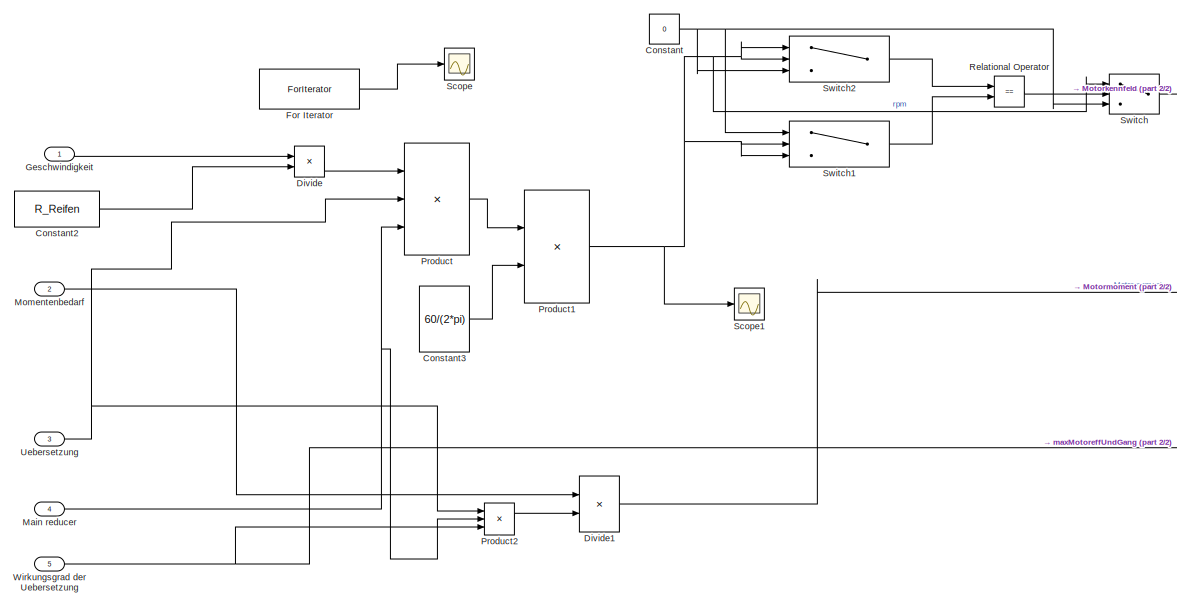
[diagram: Wirkungsgradbestimmung/Wirkungsgradberechnungen - part 1/2, left side, full height]
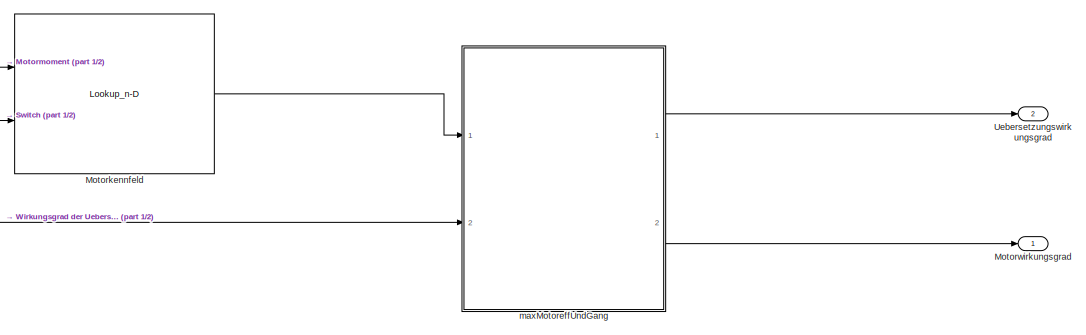
[diagram: Wirkungsgradbestimmung/Wirkungsgradberechnungen - part 2/2, middle right region]
BLOCK [SubSystem] Wirkungsgradbestimmung/Wirkungsgradberechnungen
  Commented = on
  Ports = [5, 2]
  RequestExecContextInheritance = off
  TreatAsAtomicUnit = on
BLOCK [Constant] Wirkungsgradbestimmung/Wirkungsgradberechnungen/Constant
  Value = 0
BLOCK [Constant] Wirkungsgradbestimmung/Wirkungsgradberechnungen/Constant2
  Value = R_Reifen
BLOCK [Constant] Wirkungsgradbestimmung/Wirkungsgradberechnungen/Constant3
  Value = 60/(2*pi)
BLOCK [Product] Wirkungsgradbestimmung/Wirkungsgradberechnungen/Divide
  Inputs = */
  Ports = [2, 1]
BLOCK [Product] Wirkungsgradbestimmung/Wirkungsgradberechnungen/Divide1
  Inputs = */
  Ports = [2, 1]
BLOCK [ForIterator] Wirkungsgradbestimmung/Wirkungsgradberechnungen/For Iterator
  IterationLimit = 4
  Ports = [0, 1]
BLOCK [Inport] Wirkungsgradbestimmung/Wirkungsgradberechnungen/Geschwindigkeit
BLOCK [Inport] Wirkungsgradbestimmung/Wirkungsgradberechnungen/Main reducer
  Port = 4
BLOCK [Inport] Wirkungsgradbestimmung/Wirkungsgradberechnungen/Momentenbedarf
  Port = 2
BLOCK [Lookup_n-D] Wirkungsgradbestimmung/Wirkungsgradberechnungen/Motorkennfeld
  BreakpointsForDimension1 = [1:86]
  BreakpointsForDimension2 = [1:251]
  InputPortMap = u0,u1
  InternalRulePriority = Speed
  Ports = [2, 1]
  RndMeth = Simplest
  Table = kennfeld
BLOCK [Outport] Wirkungsgradbestimmung/Wirkungsgradberechnungen/Motorwirkungsgrad
BLOCK [Product] Wirkungsgradbestimmung/Wirkungsgradberechnungen/Product
  Inputs = 3
  Ports = [3, 1]
BLOCK [Product] Wirkungsgradbestimmung/Wirkungsgradberechnungen/Product1
  Ports = [2, 1]
BLOCK [Product] Wirkungsgradbestimmung/Wirkungsgradberechnungen/Product2
  Inputs = 3
  Ports = [3, 1]
BLOCK [RelationalOperator] Wirkungsgradbestimmung/Wirkungsgradberechnungen/Relational Operator
  InputSameDT = off
  Operator = ==
  OutDataTypeStr = boolean
  Ports = [2, 1]
  RndMeth = Simplest
BLOCK [Scope] Wirkungsgradbestimmung/Wirkungsgradberechnungen/Scope
  Floating = off
  NumInputPorts = 1
  Ports = [1]
  ScopeSpecificationString = Simulink.scopes.TimeScopeBlockCfg('CurrentConfiguration', extmgr.ConfigurationSet(extmgr.Configuration('Core','General UI',true),extmgr.Configuration('Core','Source UI',true),extmgr.Configuration('Sources','WiredSimulink',true,'DataLoggingVariableName','ScopeData1'),extmgr.Configuration('Visuals','Time Domain',true),extmgr.Configuration('Tools','Plot Navigation',true),extmgr.Configuration('Tools',...<+40ch>
BLOCK [Scope] Wirkungsgradbestimmung/Wirkungsgradberechnungen/Scope1
  Floating = off
  NumInputPorts = 1
  Ports = [1]
  ScopeSpecificationString = Simulink.scopes.TimeScopeBlockCfg('CurrentConfiguration', extmgr.ConfigurationSet(extmgr.Configuration('Core','General UI',true),extmgr.Configuration('Core','Source UI',true),extmgr.Configuration('Sources','WiredSimulink',true,'DataLoggingVariableName','ScopeData1'),extmgr.Configuration('Visuals','Time Domain',true),extmgr.Configuration('Tools','Plot Navigation',true),extmgr.Configuration('Tools',...<+40ch>
BLOCK [Switch] Wirkungsgradbestimmung/Wirkungsgradberechnungen/Switch
  Criteria = u2 ~= 0
  InputSameDT = off
  SaturateOnIntegerOverflow = off
  Threshold = 1
BLOCK [Switch] Wirkungsgradbestimmung/Wirkungsgradberechnungen/Switch1
  Criteria = u2 > Threshold
  InputSameDT = off
  SaturateOnIntegerOverflow = off
  Threshold = 2500
BLOCK [Switch] Wirkungsgradbestimmung/Wirkungsgradberechnungen/Switch2
  InputSameDT = off
  SaturateOnIntegerOverflow = off
BLOCK [Inport] Wirkungsgradbestimmung/Wirkungsgradberechnungen/Uebersetzung
  Port = 3
BLOCK [Outport] Wirkungsgradbestimmung/Wirkungsgradberechnungen/Uebersetzungswirkungsgrad
  Port = 2
BLOCK [Inport] Wirkungsgradbestimmung/Wirkungsgradberechnungen/Wirkungsgrad der Uebersetzung
  Port = 5
BLOCK [SubSystem] Wirkungsgradbestimmung/Wirkungsgradberechnungen/maxMotoreffUndGang
  ErrorFcn = Stateflow.Translate.translate
  PermitHierarchicalResolution = ExplicitOnly
  Ports = [2, 2]
  RequestExecContextInheritance = off
  SFBlockType = MATLAB Function
  TreatAsAtomicUnit = on
BLOCK [Demux] Wirkungsgradbestimmung/Wirkungsgradberechnungen/maxMotoreffUndGang/ Demux 
  Outputs = 1
  Ports = [1, 1]
BLOCK [S-Function] Wirkungsgradbestimmung/Wirkungsgradberechnungen/maxMotoreffUndGang/ SFunction 
  EnableBusSupport = on
  FunctionName = sf_sfun
  PortCounts = [2 3]
  Ports = [2, 3]
  SFcnIsStateOwnerBlock = off
  SFunctionDeploymentMode = off
  Tag = Stateflow S-Function 4
BLOCK [Terminator] Wirkungsgradbestimmung/Wirkungsgradberechnungen/maxMotoreffUndGang/ Terminator 
BLOCK [Outport] Wirkungsgradbestimmung/Wirkungsgradberechnungen/maxMotoreffUndGang/eta_Getriebe
BLOCK [Outport] Wirkungsgradbestimmung/Wirkungsgradberechnungen/maxMotoreffUndGang/eta_Motor
  Port = 2
BLOCK [Inport] Wirkungsgradbestimmung/Wirkungsgradberechnungen/maxMotoreffUndGang/getriebeeffizienz
  Port = 2
BLOCK [Inport] Wirkungsgradbestimmung/Wirkungsgradberechnungen/maxMotoreffUndGang/motoreffizienz
BLOCK [SubSystem] Wirkungsgradbestimmung/maxMotoreffUndGang
  Commented = on
  ErrorFcn = Stateflow.Translate.translate
  PermitHierarchicalResolution = ExplicitOnly
  Ports = [2, 2]
  RequestExecContextInheritance = off
  SFBlockType = MATLAB Function
  TreatAsAtomicUnit = on
BLOCK [Demux] Wirkungsgradbestimmung/maxMotoreffUndGang/ Demux 
  Outputs = 1
  Ports = [1, 1]
BLOCK [S-Function] Wirkungsgradbestimmung/maxMotoreffUndGang/ SFunction 
  EnableBusSupport = on
  FunctionName = sf_sfun
  PortCounts = [2 3]
  Ports = [2, 3]
  SFcnIsStateOwnerBlock = off
  SFunctionDeploymentMode = off
  Tag = Stateflow S-Function 5
BLOCK [Terminator] Wirkungsgradbestimmung/maxMotoreffUndGang/ Terminator 
BLOCK [Outport] Wirkungsgradbestimmung/maxMotoreffUndGang/eta_Getriebe
BLOCK [Outport] Wirkungsgradbestimmung/maxMotoreffUndGang/eta_Motor
  Port = 2
BLOCK [Inport] Wirkungsgradbestimmung/maxMotoreffUndGang/getriebeeffizienz
  Port = 2
BLOCK [Inport] Wirkungsgradbestimmung/maxMotoreffUndGang/motoreffizienz
BLOCK [Constant] Wirkungsgradbestimmung/Übersetzungen der Getriebe
  Value = i_getriebe
ANNOTATION Mechanik/Kraft und Momentenbedarf/Beschleunigungswiderstand: F_acc (t)=[(1+λ)∙M_bus + M_fahrgast∙Fahrgaeste]∙acc(t)
ANNOTATION Mechanik/Kraft und Momentenbedarf/Luftwiderstand: F_l (t)=1/2 ρ_l∙A_f∙ C_d∙V(t)^2
ANNOTATION Mechanik/Kraft und Momentenbedarf/Rollwiderstand: F_r (t)=C_r ∙M∙g∙cos⁡(α)
ANNOTATION Mechanik/Kraft und Momentenbedarf/Steigungswiderstand: F_st (t)=M∙g∙sin⁡(α)
NET Add:1 -> Scope2:1, To Workspace2:1
LINE Constant:1 -> Nebenverbraucher:1
NET Derivative:1 -> MATLAB Function:2, Scope4:1
LINE Energieverbrauch/Divide:1 -> Energieverbrauch/Leistungsverbrauch:1
LINE Energieverbrauch/Getriebeeffizienz:1 -> Energieverbrauch/Product:1
LINE Energieverbrauch/Leistungsbedarf:1 -> Energieverbrauch/Divide:1
LINE Energieverbrauch/Motoreffizienz:1 -> Energieverbrauch/Product:2
LINE Energieverbrauch/Product:1 -> Energieverbrauch/Divide:2
NET Energieverbrauch:1 -> Add:1, Integrator:1, Scope:1, To Workspace1:1
NET From Workspace:1 -> Derivative:1, Integrator1:1, MATLAB Function:3, Mechanik:1, Scope3:1, To Workspace:1, Wirkungsgradbestimmung:1
LINE Integrator1:1 -> Scope9:1
LINE Integrator:1 -> Scope10:1
NET MATLAB Function:1 -> Energieverbrauch:3, Scope6:1
NET MATLAB Function:2 -> Rekuperation:3, Scope5:1
NET Mechanik/Geschwindigkeit:1 -> Mechanik/Kraft und Momentenbedarf:1, Mechanik/Product:1
NET Mechanik/Kraft und Momentenbedarf/Add:1 -> Mechanik/Kraft und Momentenbedarf/F_Bedarf:1, Mechanik/Kraft und Momentenbedarf/Product:1, Mechanik/Kraft und Momentenbedarf/Scope1:1
LINE Mechanik/Kraft und Momentenbedarf/Beschleunigungswiderstand/Add1:1 -> Mechanik/Kraft und Momentenbedarf/Beschleunigungswiderstand/Product2:2
LINE Mechanik/Kraft und Momentenbedarf/Beschleunigungswiderstand/Add:1 -> Mechanik/Kraft und Momentenbedarf/Beschleunigungswiderstand/Product1:2
LINE Mechanik/Kraft und Momentenbedarf/Beschleunigungswiderstand/Constant:1 -> Mechanik/Kraft und Momentenbedarf/Beschleunigungswiderstand/Add1:1
LINE Mechanik/Kraft und Momentenbedarf/Beschleunigungswiderstand/Derivative:1 -> Mechanik/Kraft und Momentenbedarf/Beschleunigungswiderstand/Product1:1
LINE Mechanik/Kraft und Momentenbedarf/Beschleunigungswiderstand/From Workspace:1 -> Mechanik/Kraft und Momentenbedarf/Beschleunigungswiderstand/Product:2
LINE Mechanik/Kraft und Momentenbedarf/Beschleunigungswiderstand/Geschwindikeit:1 -> Mechanik/Kraft und Momentenbedarf/Beschleunigungswiderstand/Derivative:1
LINE Mechanik/Kraft und Momentenbedarf/Beschleunigungswiderstand/Masse Bus:1 -> Mechanik/Kraft und Momentenbedarf/Beschleunigungswiderstand/Product2:1
LINE Mechanik/Kraft und Momentenbedarf/Beschleunigungswiderstand/Masse Fahrgast:1 -> Mechanik/Kraft und Momentenbedarf/Beschleunigungswiderstand/Product:1
LINE Mechanik/Kraft und Momentenbedarf/Beschleunigungswiderstand/Product1:1 -> Mechanik/Kraft und Momentenbedarf/Beschleunigungswiderstand/F_acc:1
LINE Mechanik/Kraft und Momentenbedarf/Beschleunigungswiderstand/Product2:1 -> Mechanik/Kraft und Momentenbedarf/Beschleunigungswiderstand/Add:1
LINE Mechanik/Kraft und Momentenbedarf/Beschleunigungswiderstand/Product:1 -> Mechanik/Kraft und Momentenbedarf/Beschleunigungswiderstand/Add:2
LINE Mechanik/Kraft und Momentenbedarf/Beschleunigungswiderstand/Äquivalente Masse:1 -> Mechanik/Kraft und Momentenbedarf/Beschleunigungswiderstand/Add1:2
LINE Mechanik/Kraft und Momentenbedarf/Beschleunigungswiderstand:1 -> Mechanik/Kraft und Momentenbedarf/Add:4
LINE Mechanik/Kraft und Momentenbedarf/Constant:1 -> Mechanik/Kraft und Momentenbedarf/Product:2
NET Mechanik/Kraft und Momentenbedarf/From Workspace:1 -> Mechanik/Kraft und Momentenbedarf/Rollwiderstand:1, Mechanik/Kraft und Momentenbedarf/Steigungswiderstand:1
NET Mechanik/Kraft und Momentenbedarf/Geschwindigkeit:1 -> Mechanik/Kraft und Momentenbedarf/Beschleunigungswiderstand:1, Mechanik/Kraft und Momentenbedarf/Luftwiderstand:1
LINE Mechanik/Kraft und Momentenbedarf/Luftwiderstand/Constant3:1 -> Mechanik/Kraft und Momentenbedarf/Luftwiderstand/Product:5
LINE Mechanik/Kraft und Momentenbedarf/Luftwiderstand/Fahrzeugbreite inkl. Spiegel:1 -> Mechanik/Kraft und Momentenbedarf/Luftwiderstand/Projizierte Fläche:4
LINE Mechanik/Kraft und Momentenbedarf/Luftwiderstand/Fahrzeugbreite ohne Spiegel1:1 -> Mechanik/Kraft und Momentenbedarf/Luftwiderstand/Projizierte Fläche:2
LINE Mechanik/Kraft und Momentenbedarf/Luftwiderstand/Fahrzeugbreite ohne Spiegel:1 -> Mechanik/Kraft und Momentenbedarf/Luftwiderstand/Projizierte Fläche:3
LINE Mechanik/Kraft und Momentenbedarf/Luftwiderstand/Geschwindigkeit:1 -> Mechanik/Kraft und Momentenbedarf/Luftwiderstand/Square:1
LINE Mechanik/Kraft und Momentenbedarf/Luftwiderstand/Luftdichte:1 -> Mechanik/Kraft und Momentenbedarf/Luftwiderstand/Product:2
LINE Mechanik/Kraft und Momentenbedarf/Luftwiderstand/Luftdruck:1 -> Mechanik/Kraft und Momentenbedarf/Luftwiderstand/Luftdichte:3
LINE Mechanik/Kraft und Momentenbedarf/Luftwiderstand/Luftwiderstandsbeiwert:1 -> Mechanik/Kraft und Momentenbedarf/Luftwiderstand/Product:4
LINE Mechanik/Kraft und Momentenbedarf/Luftwiderstand/Podesthöhe:1 -> Mechanik/Kraft und Momentenbedarf/Luftwiderstand/Projizierte Fläche:1
NET Mechanik/Kraft und Momentenbedarf/Luftwiderstand/Product:1 -> Mechanik/Kraft und Momentenbedarf/Luftwiderstand/F_l:1, Mechanik/Kraft und Momentenbedarf/Luftwiderstand/Scope:1
LINE Mechanik/Kraft und Momentenbedarf/Luftwiderstand/Projizierte Fläche:1 -> Mechanik/Kraft und Momentenbedarf/Luftwiderstand/Product:3
LINE Mechanik/Kraft und Momentenbedarf/Luftwiderstand/Square:1 -> Mechanik/Kraft und Momentenbedarf/Luftwiderstand/Product:1
LINE Mechanik/Kraft und Momentenbedarf/Luftwiderstand/Taupunkt:1 -> Mechanik/Kraft und Momentenbedarf/Luftwiderstand/Luftdichte:2
LINE Mechanik/Kraft und Momentenbedarf/Luftwiderstand/Temperatur:1 -> Mechanik/Kraft und Momentenbedarf/Luftwiderstand/Luftdichte:1
NET Mechanik/Kraft und Momentenbedarf/Luftwiderstand:1 -> Mechanik/Kraft und Momentenbedarf/Add:1, Mechanik/Kraft und Momentenbedarf/Scope3:1
NET Mechanik/Kraft und Momentenbedarf/Product:1 -> Mechanik/Kraft und Momentenbedarf/Scope:1, Mechanik/Kraft und Momentenbedarf/T_bedarf:1
LINE Mechanik/Kraft und Momentenbedarf/Rollwiderstand/Add:1 -> Mechanik/Kraft und Momentenbedarf/Rollwiderstand/Product:5
LINE Mechanik/Kraft und Momentenbedarf/Rollwiderstand/Constant:1 -> Mechanik/Kraft und Momentenbedarf/Rollwiderstand/Product:1
LINE Mechanik/Kraft und Momentenbedarf/Rollwiderstand/Erdbeschleunigung:1 -> Mechanik/Kraft und Momentenbedarf/Rollwiderstand/Product:3
LINE Mechanik/Kraft und Momentenbedarf/Rollwiderstand/From Workspace:1 -> Mechanik/Kraft und Momentenbedarf/Rollwiderstand/Product1:2
LINE Mechanik/Kraft und Momentenbedarf/Rollwiderstand/Masse Fahrgast:1 -> Mechanik/Kraft und Momentenbedarf/Rollwiderstand/Product1:1
LINE Mechanik/Kraft und Momentenbedarf/Rollwiderstand/Masse von Fahrzeug:1 -> Mechanik/Kraft und Momentenbedarf/Rollwiderstand/Add:1
LINE Mechanik/Kraft und Momentenbedarf/Rollwiderstand/Product1:1 -> Mechanik/Kraft und Momentenbedarf/Rollwiderstand/Add:2
NET Mechanik/Kraft und Momentenbedarf/Rollwiderstand/Product:1 -> Mechanik/Kraft und Momentenbedarf/Rollwiderstand/F_r:1, Mechanik/Kraft und Momentenbedarf/Rollwiderstand/Scope:1
LINE Mechanik/Kraft und Momentenbedarf/Rollwiderstand/Rollwiderstandsbeiwert:1 -> Mechanik/Kraft und Momentenbedarf/Rollwiderstand/Product:2
LINE Mechanik/Kraft und Momentenbedarf/Rollwiderstand/Steigung:1 -> Mechanik/Kraft und Momentenbedarf/Rollwiderstand/Trigonometric Function:1
LINE Mechanik/Kraft und Momentenbedarf/Rollwiderstand/Trigonometric Function:1 -> Mechanik/Kraft und Momentenbedarf/Rollwiderstand/Product:4
LINE Mechanik/Kraft und Momentenbedarf/Rollwiderstand:1 -> Mechanik/Kraft und Momentenbedarf/Add:2
LINE Mechanik/Kraft und Momentenbedarf/Steigungswiderstand/Add:1 -> Mechanik/Kraft und Momentenbedarf/Steigungswiderstand/Product1:1
LINE Mechanik/Kraft und Momentenbedarf/Steigungswiderstand/Constant:1 -> Mechanik/Kraft und Momentenbedarf/Steigungswiderstand/Product1:2
LINE Mechanik/Kraft und Momentenbedarf/Steigungswiderstand/From Workspace:1 -> Mechanik/Kraft und Momentenbedarf/Steigungswiderstand/Product:2
LINE Mechanik/Kraft und Momentenbedarf/Steigungswiderstand/Masse Bus:1 -> Mechanik/Kraft und Momentenbedarf/Steigungswiderstand/Add:1
LINE Mechanik/Kraft und Momentenbedarf/Steigungswiderstand/Masse Fahrgast:1 -> Mechanik/Kraft und Momentenbedarf/Steigungswiderstand/Product:1
NET Mechanik/Kraft und Momentenbedarf/Steigungswiderstand/Product1:1 -> Mechanik/Kraft und Momentenbedarf/Steigungswiderstand/F_st:1, Mechanik/Kraft und Momentenbedarf/Steigungswiderstand/Scope:1
LINE Mechanik/Kraft und Momentenbedarf/Steigungswiderstand/Product:1 -> Mechanik/Kraft und Momentenbedarf/Steigungswiderstand/Add:2
LINE Mechanik/Kraft und Momentenbedarf/Steigungswiderstand/Steigung:1 -> Mechanik/Kraft und Momentenbedarf/Steigungswiderstand/Trigonometric Function:1
NET Mechanik/Kraft und Momentenbedarf/Steigungswiderstand/Trigonometric Function:1 -> Mechanik/Kraft und Momentenbedarf/Steigungswiderstand/Product1:3, Mechanik/Kraft und Momentenbedarf/Steigungswiderstand/Scope1:1
LINE Mechanik/Kraft und Momentenbedarf/Steigungswiderstand:1 -> Mechanik/Kraft und Momentenbedarf/Add:3
LINE Mechanik/Kraft und Momentenbedarf:1 -> Mechanik/Product:2
LINE Mechanik/Kraft und Momentenbedarf:2 -> Mechanik/Momentenbedarf:1
LINE Mechanik/Product:1 -> Mechanik/Leistungsbedarf:1
NET Mechanik:1 -> MATLAB Function:1, Scope11:1
LINE Mechanik:2 -> Wirkungsgradbestimmung:2
NET Nebenverbraucher:1 -> Add:3, To Workspace3:1
LINE Rekuperation/Getriebeeffizienz:1 -> Rekuperation/Product:2
LINE Rekuperation/Leistungsbedarf:1 -> Rekuperation/Product:1
LINE Rekuperation/Motoreffizienz:1 -> Rekuperation/Product:3
LINE Rekuperation/Product:1 -> Rekuperation/Rekuperation:1
NET Rekuperation:1 -> Add:2, Scope1:1
NET Wirkungsgradbestimmung/Differentialuebersetzung (wird entfernt):1 -> Wirkungsgradbestimmung/Motordrehzahlen:3, Wirkungsgradbestimmung/Motormomenten:3
NET Wirkungsgradbestimmung/Elektrokennfeld:1 -> Wirkungsgradbestimmung/MATLAB Function1:1, Wirkungsgradbestimmung/Scope5:1, Wirkungsgradbestimmung/To Workspace5:1
NET Wirkungsgradbestimmung/Gain:1 -> Wirkungsgradbestimmung/Motorwirkungsgrad:1, Wirkungsgradbestimmung/Scope3:1, Wirkungsgradbestimmung/To Workspace:1
NET Wirkungsgradbestimmung/Gangeffizienz:1 -> Wirkungsgradbestimmung/Getriebewirkungsgrad:1, Wirkungsgradbestimmung/Motormomenten:2
LINE Wirkungsgradbestimmung/Geschwindigkeit:1 -> Wirkungsgradbestimmung/Motordrehzahlen:1
LINE Wirkungsgradbestimmung/MATLAB Function1:1 -> Wirkungsgradbestimmung/Gain:1
NET Wirkungsgradbestimmung/MATLAB Function2:1 -> Wirkungsgradbestimmung/Elektrokennfeld:2, Wirkungsgradbestimmung/Scope1:1, Wirkungsgradbestimmung/To Workspace4:1
NET Wirkungsgradbestimmung/MATLAB Function3:1 -> Wirkungsgradbestimmung/Elektrokennfeld:1, Wirkungsgradbestimmung/Scope2:1, Wirkungsgradbestimmung/To Workspace1:1
LINE Wirkungsgradbestimmung/MATLAB Function:1 -> Wirkungsgradbestimmung/Motorkennfeld:1
LINE Wirkungsgradbestimmung/MATLAB Function:2 -> Wirkungsgradbestimmung/Motorkennfeld:2
LINE Wirkungsgradbestimmung/Momentenbedarf:1 -> Wirkungsgradbestimmung/Motormomenten:4
LINE Wirkungsgradbestimmung/Motordrehzahlen/Gain1:1 -> Wirkungsgradbestimmung/Motordrehzahlen/Motordrehzahlen:1
LINE Wirkungsgradbestimmung/Motordrehzahlen/Gain:1 -> Wirkungsgradbestimmung/Motordrehzahlen/Product:1
LINE Wirkungsgradbestimmung/Motordrehzahlen/Geschwindigkeit:1 -> Wirkungsgradbestimmung/Motordrehzahlen/Gain:1
LINE Wirkungsgradbestimmung/Motordrehzahlen/Product:1 -> Wirkungsgradbestimmung/Motordrehzahlen/Gain1:1
LINE Wirkungsgradbestimmung/Motordrehzahlen/Uebersetzungen:1 -> Wirkungsgradbestimmung/Motordrehzahlen/Product:2
LINE Wirkungsgradbestimmung/Motordrehzahlen/mainReducer:1 -> Wirkungsgradbestimmung/Motordrehzahlen/Product:3
NET Wirkungsgradbestimmung/Motordrehzahlen:1 -> Wirkungsgradbestimmung/MATLAB Function2:1, Wirkungsgradbestimmung/Scope4:1, Wirkungsgradbestimmung/To Workspace2:1
LINE Wirkungsgradbestimmung/Motorkennfeld:1 -> Wirkungsgradbestimmung/maxMotoreffUndGang:1
LINE Wirkungsgradbestimmung/Motormomenten/Divide1:1 -> Wirkungsgradbestimmung/Motormomenten/Motormomenten:1
LINE Wirkungsgradbestimmung/Motormomenten/Momentenbedarf:1 -> Wirkungsgradbestimmung/Motormomenten/Divide1:1
LINE Wirkungsgradbestimmung/Motormomenten/Product2:1 -> Wirkungsgradbestimmung/Motormomenten/Divide1:2
LINE Wirkungsgradbestimmung/Motormomenten/Uebersezungen:1 -> Wirkungsgradbestimmung/Motormomenten/Product2:1
LINE Wirkungsgradbestimmung/Motormomenten/mainReducer:1 -> Wirkungsgradbestimmung/Motormomenten/Product2:2
LINE Wirkungsgradbestimmung/Motormomenten/uebersWirkungsgrade:1 -> Wirkungsgradbestimmung/Motormomenten/Product2:3
NET Wirkungsgradbestimmung/Motormomenten:1 -> Wirkungsgradbestimmung/MATLAB Function3:1, Wirkungsgradbestimmung/Scope:1, Wirkungsgradbestimmung/To Workspace3:1
LINE Wirkungsgradbestimmung/Wirkungsgradberechnungen/Constant2:1 -> Wirkungsgradbestimmung/Wirkungsgradberechnungen/Divide:2
LINE Wirkungsgradbestimmung/Wirkungsgradberechnungen/Constant3:1 -> Wirkungsgradbestimmung/Wirkungsgradberechnungen/Product1:2
NET Wirkungsgradbestimmung/Wirkungsgradberechnungen/Constant:1 -> Wirkungsgradbestimmung/Wirkungsgradberechnungen/Switch1:1, Wirkungsgradbestimmung/Wirkungsgradberechnungen/Switch2:3, Wirkungsgradbestimmung/Wirkungsgradberechnungen/Switch:3
LINE Wirkungsgradbestimmung/Wirkungsgradberechnungen/Divide1:1 -> Wirkungsgradbestimmung/Wirkungsgradberechnungen/Motorkennfeld:1
LINE Wirkungsgradbestimmung/Wirkungsgradberechnungen/Divide:1 -> Wirkungsgradbestimmung/Wirkungsgradberechnungen/Product:1
LINE Wirkungsgradbestimmung/Wirkungsgradberechnungen/For Iterator:1 -> Wirkungsgradbestimmung/Wirkungsgradberechnungen/Scope:1
LINE Wirkungsgradbestimmung/Wirkungsgradberechnungen/Geschwindigkeit:1 -> Wirkungsgradbestimmung/Wirkungsgradberechnungen/Divide:1
NET Wirkungsgradbestimmung/Wirkungsgradberechnungen/Main reducer:1 -> Wirkungsgradbestimmung/Wirkungsgradberechnungen/Product2:2, Wirkungsgradbestimmung/Wirkungsgradberechnungen/Product:3
LINE Wirkungsgradbestimmung/Wirkungsgradberechnungen/Momentenbedarf:1 -> Wirkungsgradbestimmung/Wirkungsgradberechnungen/Divide1:1
LINE Wirkungsgradbestimmung/Wirkungsgradberechnungen/Motorkennfeld:1 -> Wirkungsgradbestimmung/Wirkungsgradberechnungen/maxMotoreffUndGang:1
NET Wirkungsgradbestimmung/Wirkungsgradberechnungen/Product1:1 -> Wirkungsgradbestimmung/Wirkungsgradberechnungen/Scope1:1, Wirkungsgradbestimmung/Wirkungsgradberechnungen/Switch1:2, Wirkungsgradbestimmung/Wirkungsgradberechnungen/Switch1:3, Wirkungsgradbestimmung/Wirkungsgradberechnungen/Switch2:1, Wirkungsgradbestimmung/Wirkungsgradberechnungen/Switch2:2, Wirkungsgradbestimmung/Wirkungsgradberechnungen/Switch:1
LINE Wirkungsgradbestimmung/Wirkungsgradberechnungen/Product2:1 -> Wirkungsgradbestimmung/Wirkungsgradberechnungen/Divide1:2
LINE Wirkungsgradbestimmung/Wirkungsgradberechnungen/Product:1 -> Wirkungsgradbestimmung/Wirkungsgradberechnungen/Product1:1
LINE Wirkungsgradbestimmung/Wirkungsgradberechnungen/Relational Operator:1 -> Wirkungsgradbestimmung/Wirkungsgradberechnungen/Switch:2
LINE Wirkungsgradbestimmung/Wirkungsgradberechnungen/Switch1:1 -> Wirkungsgradbestimmung/Wirkungsgradberechnungen/Relational Operator:2
LINE Wirkungsgradbestimmung/Wirkungsgradberechnungen/Switch2:1 -> Wirkungsgradbestimmung/Wirkungsgradberechnungen/Relational Operator:1
LINE Wirkungsgradbestimmung/Wirkungsgradberechnungen/Switch:1 -> Wirkungsgradbestimmung/Wirkungsgradberechnungen/Motorkennfeld:2
NET Wirkungsgradbestimmung/Wirkungsgradberechnungen/Uebersetzung:1 -> Wirkungsgradbestimmung/Wirkungsgradberechnungen/Product2:1, Wirkungsgradbestimmung/Wirkungsgradberechnungen/Product:2
NET Wirkungsgradbestimmung/Wirkungsgradberechnungen/Wirkungsgrad der Uebersetzung:1 -> Wirkungsgradbestimmung/Wirkungsgradberechnungen/Product2:3, Wirkungsgradbestimmung/Wirkungsgradberechnungen/maxMotoreffUndGang:2
LINE Wirkungsgradbestimmung/Wirkungsgradberechnungen/maxMotoreffUndGang:1 -> Wirkungsgradbestimmung/Wirkungsgradberechnungen/Uebersetzungswirkungsgrad:1
LINE Wirkungsgradbestimmung/Wirkungsgradberechnungen/maxMotoreffUndGang:2 -> Wirkungsgradbestimmung/Wirkungsgradberechnungen/Motorwirkungsgrad:1
NET Wirkungsgradbestimmung/Übersetzungen der Getriebe:1 -> Wirkungsgradbestimmung/Motordrehzahlen:2, Wirkungsgradbestimmung/Motormomenten:1
NET Wirkungsgradbestimmung:1 -> Energieverbrauch:1, Rekuperation:1, Scope8:1
NET Wirkungsgradbestimmung:2 -> Energieverbrauch:2, Rekuperation:2, Scope7:1
note: NET lines group one-source signal fan-out (src -> all destinations, sorted); 1:1 wires keep LINE
CHART Mechanik/Kraft und Momentenbedarf/Luftwiderstand/Projizierte Fläche states=1 transitions=1
  STATE_LABEL 'eML_blk_kernel()'
  STATE_LABEL 'SCRIPT:\nfunction A_proj = projflaeche(fzHoehe, podesthoehe, fzBreite, fzBreiteInklSpiegel)\n\n    %Eingabe in Maske: mm\n    \n    A_proj1 = (fzHoehe-podesthoehe)*fzBreite;\n    \n    %Spiegelhöhe\n    spiegelHoehe = 400;\n    A_proj2 = (fzBreiteInklSpiegel-fzBreite)*spiegelHoehe;\n    \n    A_proj = A_proj1 + A_proj2;\n    \n    %Umrechung mm^2 in m^2;\n    \n    A_proj = A_proj * 10^-6;\n    \nend\n'
CHART Mechanik/Kraft und Momentenbedarf/Luftwiderstand/Luftdichte states=1 transitions=1
  STATE_LABEL 'eML_blk_kernel()'
  STATE_LABEL 'SCRIPT:\nfunction rho_l = luftdichte(temperatur, taupunkt, luftdruck)\n\n%Für Werte: https://kachelmannwetter.com/site/auswahl\n\n%Einheiten bei der Eingabemaske:\n%Druck: hPa\n%Temperatur: Celsius\n\n%Temperaturumrechnung\ntemperatur = temperatur + 273.15;\n\n\n\n%Konstanten aus https://www.gribble.org/cycling/air_density.html\nc0 = 0.99999683;\nc1 = -0.90826951e-2;\nc2 = 0.78736169e-4;\nc3 = -0.61117958e-6;\nc4 = ...<+636ch>'
CHART Wirkungsgradbestimmung/MATLAB Function states=1 transitions=1
  STATE_LABEL 'eML_blk_kernel()'
  STATE_LABEL 'SCRIPT:\nfunction [plausibleMotordrehzahlen, plausibleMotormomenten] = ueberpruefenDrehzahlDrehmoment(motordrehzahlen, motormomenten)\n    %Vorerzeugen der Vektoren mit plausiblen Daten\n    plausibleMotordrehzahlen = zeros(4,1);\n    plausibleMotormomenten = zeros(4,1);\n    for j = 1:4 %4 Gänge => 4 drehzahlen bzw. momenten\n        if motordrehzahlen(j)<=2500 && motordrehzahlen(j)>=800 && motormoment...<+374ch>'
CHART Wirkungsgradbestimmung/Wirkungsgradberechnungen/maxMotoreffUndGang states=1 transitions=1
  STATE_LABEL 'eML_blk_kernel()'
  STATE_LABEL 'SCRIPT:\nfunction [eta_Getriebe, eta_Motor] = wirkungsgradAuswahl(motoreffizienz, getriebeeffizienz)\n\nfor j = 2:length(motoreffizienz)\n    if motoreffizienz(j)>motoreffizienz(j-1)\n        index = j;\n    else\n        index = j-1;\n    end\nend\neta_Getriebe = getriebeeffizienz(index);\neta_Motor = motoreffizienz(index);\n'
CHART Wirkungsgradbestimmung/maxMotoreffUndGang states=1 transitions=1
  STATE_LABEL 'eML_blk_kernel()'
  STATE_LABEL 'SCRIPT:\nfunction [eta_Getriebe, eta_Motor] = wirkungsgradAuswahl(motoreffizienz, getriebeeffizienz)\n\nfor j = 2:length(motoreffizienz)\n    if motoreffizienz(j)>motoreffizienz(j-1)\n        index = j;\n    else\n        index = j-1;\n    end\nend\neta_Getriebe = getriebeeffizienz(index);\neta_Motor = motoreffizienz(index);\n'
CHART MATLAB Function states=1 transitions=1
  STATE_LABEL 'eML_blk_kernel()'
  STATE_LABEL 'SCRIPT:\nfunction [verbrauch, rekuperation] = leistungsbedarfFallunterscheidung(leistungsbedarf, beschleunigung, geschwindigkeit)\n\n    if leistungsbedarf > 0\n        %Positiver Leistungsbedarf => Verbrauch\n        verbrauch = leistungsbedarf;\n        rekuperation = 0;\n    else\n        %Negativer Leistungsbedarf => Möglichkeit zur Rekuperation\n        %Teil-Rekuperation\n        if (geschwindigkeit >...<+557ch>'
CHART Wirkungsgradbestimmung/MATLAB Function1 states=1 transitions=1
  STATE_LABEL 'eML_blk_kernel()'
  STATE_LABEL 'SCRIPT:\nfunction wirkungsgradOhneNaN = nanBeseitigen(wirkungsgradMitNaN)\n\n    %Annahme: wenn kein Wert in Kennfeld vorhanden => eta = 80%\n\n    if isnan(wirkungsgradMitNaN)\n        wirkungsgradOhneNaN = 60;\n    else\n        wirkungsgradOhneNaN=wirkungsgradMitNaN;\n    end\nend'
CHART Wirkungsgradbestimmung/MATLAB Function3 states=1 transitions=1
  STATE_LABEL 'eML_blk_kernel()'
  STATE_LABEL 'SCRIPT:\nfunction skalierteIstMotormomenten = skalierungMoment(istMotormomenten)\n\n    %Motormomentbereich des verwendeten Kennfelds \n    %torqueBereichKennfeld = [minKennfeldTorque; maxKennfeldTorque]\n    %Einheit: Nm\n    %----------!!!Anpassungsbedarf!!!-----------\n    minKennfeldTorque = 1;\n    maxKennfeldTorque = 161;\n    \n    torqueBereichKennfeld = maxKennfeldTorque - minKennfeldTorque;\n    \n ...<+382ch>'
CHART Wirkungsgradbestimmung/MATLAB Function2 states=1 transitions=1
  STATE_LABEL 'eML_blk_kernel()'
  STATE_LABEL 'SCRIPT:\nfunction skalierteIstMotordrehzahlen  = skalierungDrehzahl(istMotordrehzahlen)\n\n    %Drehzahlenbereich des verwendeten Kennfelds \n    %rpmBereichKennfeld = [minKennfeldRPM; maxKennfeldRPM]\n    %Einheit: U/min\n    %----------!!!Anpassungsbedarf!!!-----------\n    minKennfeldRPM = 1;\n    maxKennfeldRPM = 251;\n    \n    rpmBereichKennfeld = maxKennfeldRPM - minKennfeldRPM;\n    \n    \n    %Drehza...<+335ch>'
CHART Nebenverbraucher states=1 transitions=1
  STATE_LABEL 'eML_blk_kernel()'
  STATE_LABEL 'SCRIPT:\nfunction leistungsverbrauchNebenverbraucher = nebenverbraucherLeistung(temperatur)\n\n\nif temperatur >= 10 && temperatur <=20\n    \n    leistungsverbrauchNebenverbraucher = 5000;\n    \nelseif temperatur > 20 && temperatur <= 40\n    %Annahme: 5kW bis 14kW\n    %lineare Interpolation\n    %leistungsverbrauchNebenverbraucher = -4000+450.*temperatur;\n    tempPunkte = [20 40];\n    leistPunkte = [5000...<+892ch>'
CHART  states=0 transitions=0
CHART  states=0 transitions=0
CHART  states=0 transitions=0
CHART  states=0 transitions=0
CHART  states=0 transitions=0
CHART  states=0 transitions=0
CHART  states=0 transitions=0
CHART  states=0 transitions=0
CHART  states=0 transitions=0
CHART  states=0 transitions=0
